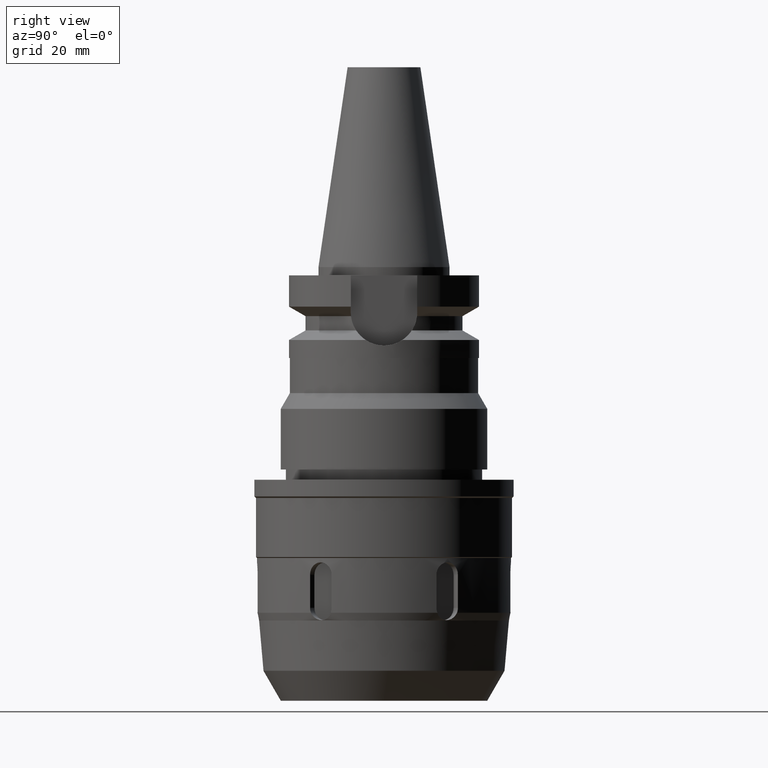
[diagram: clean part render]
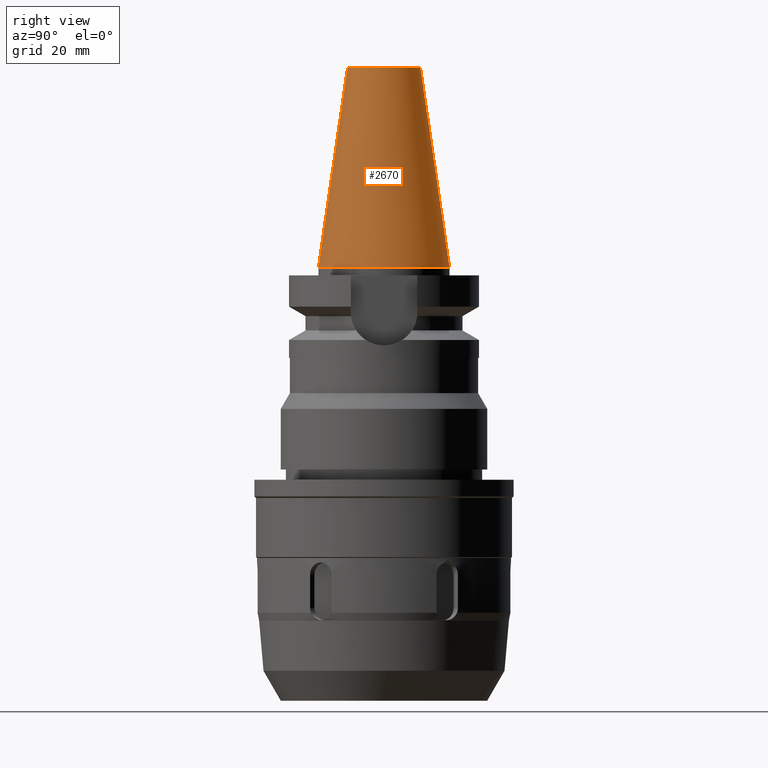
[diagram: same view with one face highlighted and labeled with its STEP entity id]
A machine part, right view. The second image highlights one B-rep face of the part: STEP entity #2670.
In plain terms, the highlighted conical surface has half-angle 8.297 deg.
Its self-contained STEP definition (entity closure, byte-faithful):
#26=CARTESIAN_POINT('',(0.E0,1.521011324541E-14,4.84E1));
#27=DIRECTION('',(0.E0,0.E0,-1.E0));
#28=DIRECTION('',(0.E0,1.E0,0.E0));
#29=AXIS2_PLACEMENT_3D('',#26,#27,#28);
#50=DIRECTION('',(0.E0,-1.443043893540E-1,-9.895333461856E-1));
#51=VECTOR('',#50,4.891194438931E1);
#52=CARTESIAN_POINT('',(0.E0,-8.816791732783E0,4.84E1));
#53=LINE('',#52,#51);
#65=DIRECTION('',(0.E0,1.443043893540E-1,-9.895333461856E-1));
#66=VECTOR('',#65,4.891194438931E1);
#67=CARTESIAN_POINT('',(0.E0,8.816791732783E0,4.84E1));
#68=LINE('',#67,#66);
#72=CARTESIAN_POINT('',(0.E0,1.521011324541E-14,-3.694822225953E-13));
#73=DIRECTION('',(0.E0,0.E0,-1.E0));
#74=DIRECTION('',(0.E0,1.E0,0.E0));
#75=AXIS2_PLACEMENT_3D('',#72,#73,#74);
#2297=CARTESIAN_POINT('',(0.E0,-8.816791732783E0,4.84E1));
#2298=CARTESIAN_POINT('',(0.E0,8.816791732783E0,4.84E1));
#2299=VERTEX_POINT('',#2297);
#2300=VERTEX_POINT('',#2298);
#2579=CARTESIAN_POINT('',(0.E0,1.5875E1,-1.776356839400E-13));
#2580=VERTEX_POINT('',#2579);
#2581=CARTESIAN_POINT('',(0.E0,-1.5875E1,-1.776356839400E-13));
#2582=VERTEX_POINT('',#2581);
#2658=CARTESIAN_POINT('',(0.E0,1.521011324541E-14,2.42E1));
#2659=DIRECTION('',(0.E0,0.E0,-1.E0));
#2660=DIRECTION('',(0.E0,-1.E0,0.E0));
#2661=AXIS2_PLACEMENT_3D('',#2658,#2659,#2660);
#2662=CONICAL_SURFACE('',#2661,1.234589586639E1,8.297E0);
#2663=ORIENTED_EDGE('',*,*,#2648,.T.);
#2665=ORIENTED_EDGE('',*,*,#2664,.T.);
#2666=ORIENTED_EDGE('',*,*,#2651,.F.);
#2667=ORIENTED_EDGE('',*,*,#2632,.F.);
#2668=EDGE_LOOP('',(#2663,#2665,#2666,#2667));
#2669=FACE_OUTER_BOUND('',#2668,.F.);
#30=CIRCLE('',#29,8.816791732783E0);
#76=CIRCLE('',#75,1.5875E1);
#2632=EDGE_CURVE('',#2300,#2299,#30,.T.);
#2648=EDGE_CURVE('',#2300,#2580,#68,.T.);
#2651=EDGE_CURVE('',#2299,#2582,#53,.T.);
#2664=EDGE_CURVE('',#2580,#2582,#76,.T.);
#2670=ADVANCED_FACE('',(#2669),#2662,.T.);